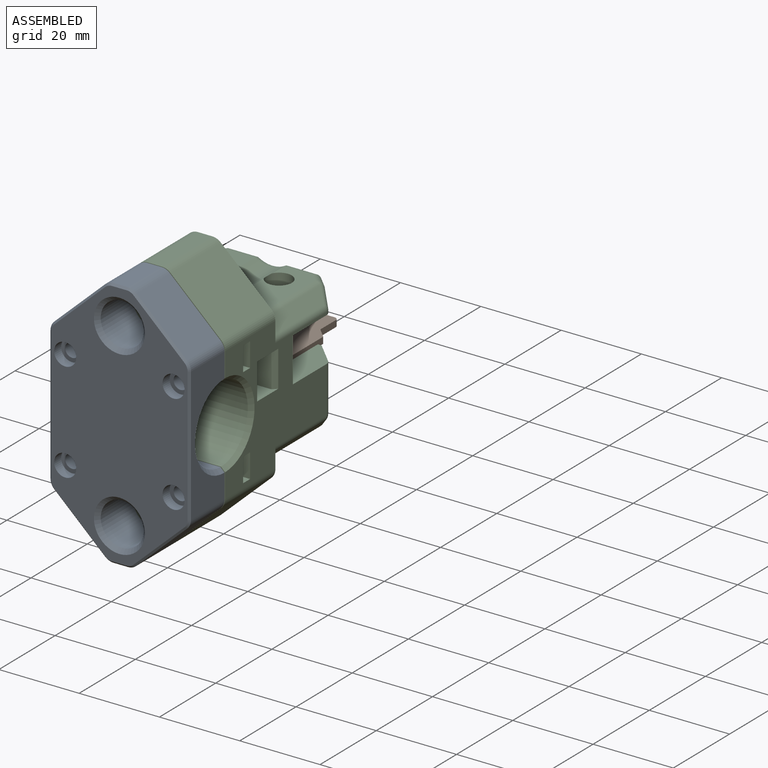
[diagram: assembled view]
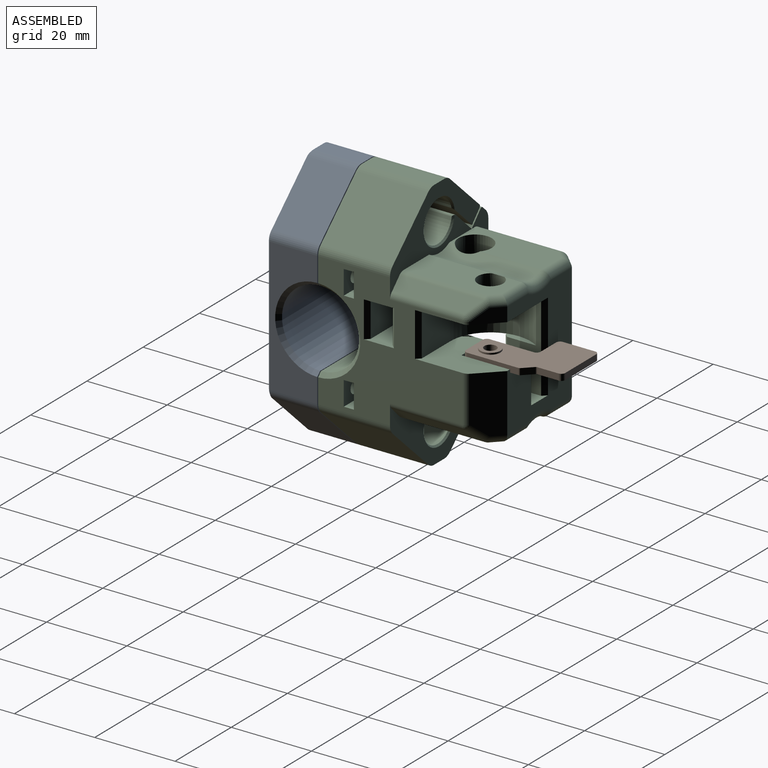
[diagram: assembled view, second angle]
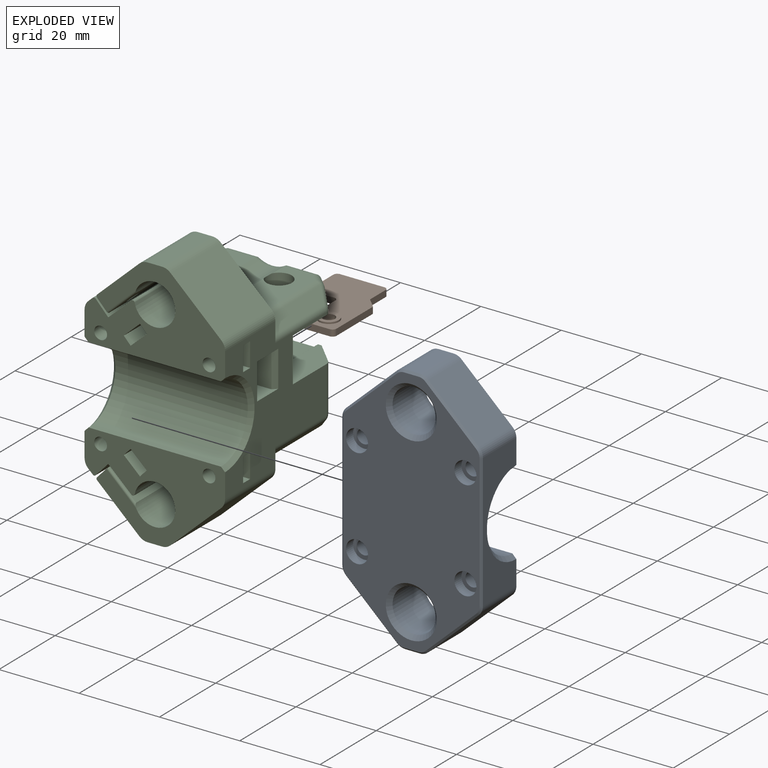
[diagram: exploded view]
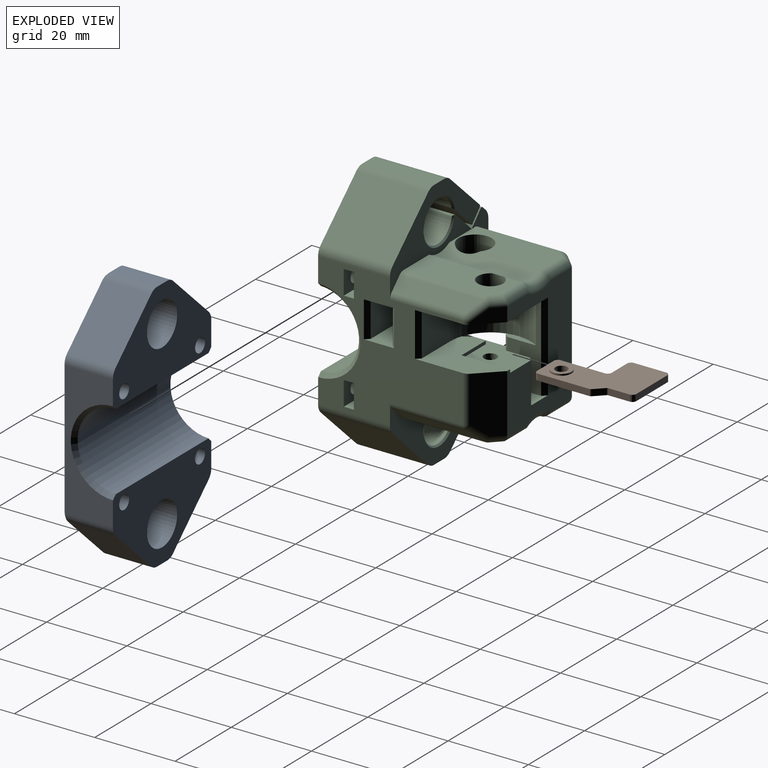
[diagram: exploded view, second angle]
ASSEMBLY  parts=3 mates=2
PART A: 54 faces, bbox 35x12.4x63 mm
  f0: plane 62x34mm, normal (0,1,0), area 1383.2mm2, adj f8,f13,f24,f28,f34,f35,f38,f39
  f1: plane 33.39x11.9mm, normal (-1,0,0), area 222.9mm2, adj f5,f17,f22,f32,f37,f50
  f2: plane 12.68x11.9mm, normal (-0.68,0,0.73), area 206.2mm2, adj f5,f17,f18,f46
  f3: cylinder r=5.35mm len=11.4mm, axis (0,1,0), area 383.2mm2, adj f5,f35
  f4: plane 11.9x3.64mm, normal (0,0,1), area 43.3mm2, adj f5,f16,f18,f42
  f5: plane 35x21.9mm, normal (0,-1,0), area 459.8mm2, adj f1,f2,f3,f4,f6,f7,f10,f11
  f6: cylinder r=9.6mm len=33mm, axis (-1,0,0), area 988.7mm2, adj f5,f22,f36,f37
  f7: cylinder r=1.75mm len=9.9mm, axis (0,1,0), area 108.9mm2, adj f5,f9
  f8: cylinder r=2.75mm len=5.5mm, axis (0,1,0), area 43.2mm2, adj f0,f9
  f9: plane 5.5x5.5mm, normal (0,1,0), area 14.1mm2, adj f7,f8
  f10: plane 33.39x11.9mm, normal (1,0,0), area 222.9mm2, adj f5,f15,f22,f30,f36,f41
  f11: plane 12.68x11.9mm, normal (0.68,0,0.73), area 206.2mm2, adj f5,f15,f16,f38
  f12: cylinder r=1.75mm len=9.9mm, axis (0,1,0), area 108.9mm2, adj f5,f14
  f13: cylinder r=2.75mm len=5.5mm, axis (0,1,0), area 43.2mm2, adj f0,f14
  f14: plane 5.5x5.5mm, normal (0,1,0), area 14.1mm2, adj f12,f13
  f15: cylinder r=3mm len=11.9mm, axis (0,1,0), area 29.3mm2, adj f5,f10,f11,f39
  f16: cylinder r=3mm len=11.9mm, axis (0,1,0), area 26.8mm2, adj f4,f5,f11,f40
  f17: cylinder r=3mm len=11.9mm, axis (0,1,0), area 29.3mm2, adj f1,f2,f5,f48
  f18: cylinder r=3mm len=11.9mm, axis (0,1,0), area 26.8mm2, adj f2,f4,f5,f44
  f19: plane 12.68x11.9mm, normal (-0.68,0,-0.73), area 206.2mm2, adj f22,f32,f33,f53
  f20: cylinder r=5.35mm len=11.4mm, axis (0,1,0), area 383.2mm2, adj f22,f34
  f21: plane 11.9x3.64mm, normal (0,0,-1), area 43.3mm2, adj f22,f31,f33,f49
  f22: plane 35x21.9mm, normal (0,-1,0), area 459.8mm2, adj f1,f6,f10,f19,f20,f21,f23,f26
  f23: cylinder r=1.75mm len=9.9mm, axis (0,1,0), area 108.9mm2, adj f22,f25
  f24: cylinder r=2.75mm len=5.5mm, axis (0,1,0), area 43.2mm2, adj f0,f25
  f25: plane 5.5x5.5mm, normal (0,1,0), area 14.1mm2, adj f23,f24
  f26: plane 12.68x11.9mm, normal (0.68,0,-0.73), area 206.2mm2, adj f22,f30,f31,f45
  f27: cylinder r=1.75mm len=9.9mm, axis (0,1,0), area 108.9mm2, adj f22,f29
  f28: cylinder r=2.75mm len=5.5mm, axis (0,1,0), area 43.2mm2, adj f0,f29
  f29: plane 5.5x5.5mm, normal (0,1,0), area 14.1mm2, adj f27,f28
  f30: cylinder r=3mm len=11.9mm, axis (0,1,0), area 29.3mm2, adj f10,f22,f26,f43
  f31: cylinder r=3mm len=11.9mm, axis (0,1,0), area 26.8mm2, adj f21,f22,f26,f47
  f32: cylinder r=3mm len=11.9mm, axis (0,1,0), area 29.3mm2, adj f1,f19,f22,f52
  f33: cylinder r=3mm len=11.9mm, axis (0,1,0), area 26.8mm2, adj f19,f21,f22,f51
  f34: cone r=5.35mm half-angle=45deg, axis (0,1,0), area 52mm2, adj f0,f20
  f35: cone r=6.35mm half-angle=45deg, axis (0,1,0), area 52mm2, adj f0,f3
  f36: cone r=10.6mm half-angle=45deg, axis (1,0,0), area 44.6mm2, adj f5,f6,f10,f22
  f37: cone r=9.6mm half-angle=45deg, axis (-1,0,0), area 44.6mm2, adj f1,f5,f6,f22
  f38: plane 13.02x12.17mm, normal (0.48,0.71,0.52), area 12.3mm2, adj f0,f11,f39,f40
  f39: cone r=2.5mm half-angle=45deg, axis (0,-1,0), area 1.6mm2, adj f0,f15,f38,f41
  f40: cone r=2.5mm half-angle=45deg, axis (0,-1,0), area 1.5mm2, adj f0,f16,f38,f42
  f41: plane 33.39x0.5mm, normal (0.71,0.71,0), area 23.6mm2, adj f0,f10,f39,f43
  f42: plane 3.64x0.5mm, normal (0,0.71,0.71), area 2.6mm2, adj f0,f4,f40,f44
  f43: cone r=3mm half-angle=45deg, axis (0,-1,0), area 1.6mm2, adj f0,f30,f41,f45
  f44: cone r=2.5mm half-angle=45deg, axis (0,-1,0), area 1.5mm2, adj f0,f18,f42,f46
  f45: plane 13.02x12.17mm, normal (0.48,0.71,-0.52), area 12.3mm2, adj f0,f26,f43,f47
  f46: plane 13.02x12.17mm, normal (-0.48,0.71,0.52), area 12.3mm2, adj f0,f2,f44,f48
  f47: cone r=3mm half-angle=45deg, axis (0,-1,0), area 1.5mm2, adj f0,f31,f45,f49
  f48: cone r=2.5mm half-angle=45deg, axis (0,-1,0), area 1.6mm2, adj f0,f17,f46,f50
  f49: plane 3.64x0.5mm, normal (0,0.71,-0.71), area 2.6mm2, adj f0,f21,f47,f51
  f50: plane 33.39x0.5mm, normal (-0.71,0.71,0), area 23.6mm2, adj f0,f1,f48,f52
  f51: cone r=3mm half-angle=45deg, axis (0,-1,0), area 1.5mm2, adj f0,f33,f49,f53
  f52: cone r=3mm half-angle=45deg, axis (0,-1,0), area 1.6mm2, adj f0,f32,f50,f53
  f53: plane 13.02x12.17mm, normal (-0.48,0.71,-0.52), area 12.3mm2, adj f0,f19,f51,f52
PART B: 21 faces, bbox 23x15.5x2 mm
  f0: plane 11x1.6mm, normal (0,1,0), area 17.6mm2, adj f1,f6,f11,f19
  f1: plane 23x15.5mm, normal (0,0,1), area 219.1mm2, adj f0,f2,f5,f6,f7,f8,f9,f10
  f2: plane 6x1.6mm, normal (-1,0,0), area 9.6mm2, adj f1,f6,f8,f11
  f3: cylinder r=1.5mm len=3mm, axis (0,0,-1), area 18.8mm2, adj f4,f11
  f4: plane 5x5mm, normal (0,0,1), area 12.6mm2, adj f3,f5
  f5: cylinder r=2.5mm len=5mm, axis (0,0,-1), area 6.3mm2, adj f1,f4
  f6: cylinder r=1mm len=1.6mm, axis (0,0,-1), area 2.5mm2, adj f0,f1,f2,f11
  f7: plane 12.79x1.6mm, normal (0,-1,0), area 20.5mm2, adj f1,f8,f11,f13
  f8: cylinder r=1mm len=1.6mm, axis (0,0,-1), area 2.5mm2, adj f1,f2,f7,f11
  f9: cylinder r=1mm len=1.6mm, axis (0,0,-1), area 2.5mm2, adj f1,f10,f11,f14
  f10: plane 11x1.6mm, normal (1,0,0), area 17.6mm2, adj f1,f9,f11,f18
  f11: plane 23x15.5mm, normal (0,0,-1), area 231.7mm2, adj f0,f2,f3,f6,f7,f8,f9,f10
  f12: plane 2.21x2.21mm, normal (0.71,-0.71,0), area 5mm2, adj f1,f11,f13,f15
  f13: cylinder r=0.5mm len=1.6mm, axis (0,0,-1), area 0.6mm2, adj f1,f7,f11,f12
  f14: plane 5.29x1.6mm, normal (0,-1,0), area 8.5mm2, adj f1,f9,f11,f15
  f15: cylinder r=0.5mm len=1.6mm, axis (0,0,1), area 0.6mm2, adj f1,f11,f12,f14
  f16: plane 8x1.6mm, normal (0,1,0), area 12.8mm2, adj f1,f11,f18,f20
  f17: plane 5.5x1.6mm, normal (-1,0,0), area 8.8mm2, adj f1,f11,f19,f20
  f18: cylinder r=1mm len=1.6mm, axis (0,0,1), area 2.5mm2, adj f1,f10,f11,f16
  f19: cylinder r=1mm len=1.6mm, axis (0,0,1), area 2.5mm2, adj f0,f1,f11,f17
  f20: cylinder r=1mm len=1.6mm, axis (0,0,-1), area 2.5mm2, adj f1,f11,f16,f17
PART C: 217 faces, bbox 35.1x43x63.1 mm
  f0: plane 29x23mm, normal (0,1,0), area 424.4mm2, adj f3,f17,f129,f157,f159,f163,f164,f165
  f1: plane 14.02x11mm, normal (-1,0,0), area 143.2mm2, adj f17,f129,f131,f158,f205,f216
  f2: cylinder r=1.6mm len=3.2mm, axis (0,0,-1), area 12.1mm2, adj f151,f157
  f3: plane 21.14x18.77mm, normal (0,0,-1), area 310.8mm2, adj f0,f37,f125,f126,f127,f162,f165,f179
  f4: plane 22x21.14mm, normal (0,0,-1), area 350mm2, adj f14,f126,f128,f130,f131,f161,f204,f208
  f5: plane 23x9.07mm, normal (0,0,-1), area 158.4mm2, adj f73,f111,f152,f173,f176,f177
  f6: plane 23x9.07mm, normal (0,0,-1), area 176.1mm2, adj f73,f74,f111,f144,f181,f183,f184
  f7: cylinder r=1.6mm len=3.2mm, axis (0,0,-1), area 25.1mm2, adj f143,f155
  f8: plane 23x9.07mm, normal (0,0,1), area 158.4mm2, adj f11,f20,f21,f141,f198,f200,f202
  f9: plane 23x9.07mm, normal (0,0,1), area 176.1mm2, adj f11,f20,f139,f186,f191,f193
  f10: cylinder r=1.6mm len=3.2mm, axis (0,0,-1), area 25.1mm2, adj f140,f156
  f11: cylinder r=7mm len=23mm, axis (0,-1,0), area 166.7mm2, adj f8,f9,f20,f139,f141,f196
  f12: cylinder r=1.6mm len=3.2mm, axis (0,0,-1), area 25.1mm2, adj f132,f154
  f13: plane 8.21x1.64mm, normal (0,0,1), area 9.7mm2, adj f125,f126,f130,f203
  f14: plane 36.07x33.39mm, normal (-1,0,0), area 508mm2, adj f4,f19,f21,f28,f29,f30,f31,f65
  f15: plane 3.2x3.1mm, normal (0,-1,0), area 8mm2, adj f16,f129
  f16: cylinder r=1.6mm len=9mm, axis (0,-1,0), area 84.2mm2, adj f15,f82,f128,f129
  f17: plane 18.77x15.5mm, normal (0,0,1), area 151.5mm2, adj f0,f1,f37,f126,f127,f131,f158,f164
  f18: cylinder r=1.65mm len=3.45mm, axis (-0.68,0,0.73), area 15.7mm2, adj f50,f61
  f19: plane 35x21.9mm, normal (0,-1,0), area 443.6mm2, adj f14,f22,f23,f24,f25,f26,f27,f36
  f20: plane 32.02x19.83mm, normal (0,1,0), area 225.5mm2, adj f8,f9,f11,f22,f26,f37,f38,f48
  f21: plane 8.37x5.9mm, normal (0,1,0), area 20.7mm2, adj f8,f14,f24,f47,f65,f69,f169,f194
  f22: plane 17.9x10.49mm, normal (-0.68,0,0.73), area 233.3mm2, adj f19,f20,f60,f66,f68
  f23: cylinder r=1.6mm len=6.4mm, axis (0,-1,0), area 64.3mm2, adj f19,f31
  f24: plane 17.9x1.09mm, normal (-0.68,0,0.73), area 26.6mm2, adj f19,f21,f65,f69
  f25: cylinder r=5.1mm len=17.5mm, axis (0,1,0), area 524.6mm2, adj f19,f50,f62,f67,f70
  f26: plane 17.9x3.64mm, normal (0,0,1), area 65.1mm2, adj f19,f20,f64,f66
  f27: cylinder r=9.6mm len=33mm, axis (-1,0,0), area 988.7mm2, adj f19,f72,f213,f214
  f28: plane 5.73x2.5mm, normal (0,0,1), area 14.3mm2, adj f14,f30,f31,f32
  f29: plane 5.73x2.5mm, normal (0,0,-1), area 14.3mm2, adj f14,f30,f31,f33
  f30: plane 7.46x6mm, normal (0,-1,0), area 31.5mm2, adj f14,f28,f29,f32,f33,f35
  f31: plane 7.46x6mm, normal (0,1,0), area 31.5mm2, adj f14,f23,f28,f29,f32,f33
  f32: plane 3x2.5mm, normal (-0.87,0,0.5), area 8.7mm2, adj f28,f30,f31,f33
  f33: plane 3x2.5mm, normal (-0.87,0,-0.5), area 8.7mm2, adj f29,f30,f31,f32
  f34: plane 3.2x3.2mm, normal (0,-1,0), area 8mm2, adj f35
  f35: cylinder r=1.6mm len=9mm, axis (0,-1,0), area 90.5mm2, adj f30,f34
  f36: cylinder r=1.6mm len=6.4mm, axis (0,-1,0), area 64.3mm2, adj f19,f42
  f37: plane 36.07x33.39mm, normal (1,0,0), area 618.6mm2, adj f3,f17,f19,f20,f39,f40,f41,f42
  f38: plane 17.9x12.68mm, normal (0.68,0,0.73), area 310.1mm2, adj f19,f20,f63,f64
  f39: plane 5.73x2.5mm, normal (0,0,1), area 14.3mm2, adj f37,f41,f42,f43
  f40: plane 5.73x2.5mm, normal (0,0,-1), area 14.3mm2, adj f37,f41,f42,f44
  f41: plane 7.46x6mm, normal (0,-1,0), area 31.5mm2, adj f37,f39,f40,f43,f44,f46
  f42: plane 7.46x6mm, normal (0,1,0), area 31.5mm2, adj f36,f37,f39,f40,f43,f44
  f43: plane 3x2.5mm, normal (0.87,0,0.5), area 8.7mm2, adj f39,f41,f42,f44
  f44: plane 3x2.5mm, normal (0.87,0,-0.5), area 8.7mm2, adj f40,f41,f42,f43
  f45: plane 3.2x3.2mm, normal (0,-1,0), area 8mm2, adj f46
  f46: cylinder r=1.6mm len=9mm, axis (0,-1,0), area 90.5mm2, adj f41,f45
  f47: plane 17.9x3.38mm, normal (0.73,0,0.68), area 82.6mm2, adj f19,f21,f48,f69
  f48: plane 17.9x5.75mm, normal (-0.68,0,0.73), area 132.2mm2, adj f19,f20,f47,f51,f67
  f49: plane 17.9x2.87mm, normal (-0.73,0,-0.68), area 70mm2, adj f19,f20,f50,f68,f70
  f50: plane 17.43x6.77mm, normal (0.68,0,-0.73), area 151.6mm2, adj f18,f20,f25,f49,f62,f70
  f51: cylinder r=1.65mm len=5.82mm, axis (-0.68,0,0.73), area 50.6mm2, adj f48,f53
  f52: plane 9.08x4.03mm, normal (-0.68,0,0.73), area 37mm2, adj f19,f54,f55,f56,f57,f59
  f53: plane 9.08x4.03mm, normal (0.68,0,-0.73), area 37mm2, adj f19,f51,f54,f55,f56,f57
  f54: plane 7.49x1.83mm, normal (-0.73,0,-0.68), area 18.7mm2, adj f19,f52,f53,f55
  f55: plane 3.72x3.7mm, normal (-0.37,-0.87,-0.34), area 7.9mm2, adj f52,f53,f54,f56
  f56: plane 3.72x3.7mm, normal (0.37,-0.87,0.34), area 7.9mm2, adj f52,f53,f55,f57
  f57: plane 7.49x1.83mm, normal (0.73,0,0.68), area 18.7mm2, adj f19,f52,f53,f56
  f58: plane 3.3x2.42mm, normal (-0.68,0,0.73), area 8.6mm2, adj f59
  f59: cylinder r=1.65mm len=4.12mm, axis (-0.68,0,0.73), area 25.9mm2, adj f52,f58
  f60: cylinder r=2.75mm len=6mm, axis (-0.68,0,0.73), area 50.1mm2, adj f22,f61,f68
  f61: plane 5.5x4.03mm, normal (-0.68,0,0.73), area 15.2mm2, adj f18,f60
  f62: cone r=5.5mm half-angle=45deg, axis (0,1,0), area 18mm2, adj f20,f25,f50,f67
  f63: cylinder r=3mm len=17.9mm, axis (0,1,0), area 44.1mm2, adj f19,f20,f37,f38
  f64: cylinder r=3mm len=17.9mm, axis (0,1,0), area 40.3mm2, adj f19,f20,f26,f38
  f65: cylinder r=3mm len=17.9mm, axis (0,1,0), area 44.1mm2, adj f14,f19,f21,f24
  f66: cylinder r=3mm len=17.9mm, axis (0,1,0), area 40.3mm2, adj f19,f20,f22,f26
  f67: cylinder r=0.5mm len=17.9mm, axis (0,1,0), area 19mm2, adj f19,f20,f25,f48,f62
  f68: cylinder r=0.5mm len=17.9mm, axis (0,-1,0), area 13.7mm2, adj f19,f20,f22,f49,f60
  f69: cylinder r=0.5mm len=17.9mm, axis (0,1,0), area 14.1mm2, adj f19,f21,f24,f47
  f70: cylinder r=0.5mm len=7.76mm, axis (0.73,0,0.68), area 7.5mm2, adj f19,f25,f49,f50
  f71: cylinder r=1.65mm len=3.45mm, axis (-0.68,0,-0.73), area 15.7mm2, adj f99,f110
  f72: plane 35x21.9mm, normal (0,-1,0), area 443.6mm2, adj f14,f27,f37,f75,f76,f77,f78,f79
  f73: plane 32.02x19.83mm, normal (0,1,0), area 225.5mm2, adj f5,f6,f37,f75,f79,f87,f97,f98
  f74: plane 8.37x5.9mm, normal (0,1,0), area 20.7mm2, adj f6,f14,f77,f96,f115,f119,f166,f183
  f75: plane 17.9x10.49mm, normal (-0.68,0,-0.73), area 233.3mm2, adj f72,f73,f109,f116,f118
  f76: cylinder r=1.6mm len=6.4mm, axis (0,-1,0), area 64.3mm2, adj f72,f83
  f77: plane 17.9x1.09mm, normal (-0.68,0,-0.73), area 26.6mm2, adj f72,f74,f115,f119
  f78: cylinder r=5.1mm len=17.5mm, axis (0,1,0), area 524.6mm2, adj f72,f99,f112,f117,f120
  f79: plane 17.9x3.64mm, normal (0,0,-1), area 65.1mm2, adj f72,f73,f114,f116
  f80: plane 5.73x2.5mm, normal (0,0,-1), area 14.3mm2, adj f14,f82,f83,f84
  f81: plane 5.73x2.5mm, normal (0,0,1), area 14.3mm2, adj f14,f82,f83,f85
  f82: plane 7.46x6mm, normal (0,-1,0), area 31.5mm2, adj f14,f16,f80,f81,f84,f85
  f83: plane 7.46x6mm, normal (0,1,0), area 31.5mm2, adj f14,f76,f80,f81,f84,f85
  f84: plane 3x2.5mm, normal (-0.87,0,-0.5), area 8.7mm2, adj f80,f82,f83,f85
  f85: plane 3x2.5mm, normal (-0.87,0,0.5), area 8.7mm2, adj f81,f82,f83,f84
  f86: cylinder r=1.6mm len=6.4mm, axis (0,-1,0), area 64.3mm2, adj f72,f91
  f87: plane 17.9x12.68mm, normal (0.68,0,-0.73), area 310.1mm2, adj f72,f73,f113,f114
  f88: plane 5.73x2.5mm, normal (0,0,-1), area 14.3mm2, adj f37,f90,f91,f92
  f89: plane 5.73x2.5mm, normal (0,0,1), area 14.3mm2, adj f37,f90,f91,f93
  f90: plane 7.46x6mm, normal (0,-1,0), area 31.5mm2, adj f37,f88,f89,f92,f93,f95
  f91: plane 7.46x6mm, normal (0,1,0), area 31.5mm2, adj f37,f86,f88,f89,f92,f93
  f92: plane 3x2.5mm, normal (0.87,0,-0.5), area 8.7mm2, adj f88,f90,f91,f93
  f93: plane 3x2.5mm, normal (0.87,0,0.5), area 8.7mm2, adj f89,f90,f91,f92
  f94: plane 3.2x3.2mm, normal (0,-1,0), area 8mm2, adj f95
  f95: cylinder r=1.6mm len=9mm, axis (0,-1,0), area 90.5mm2, adj f90,f94
  f96: plane 17.9x3.38mm, normal (0.73,0,-0.68), area 82.6mm2, adj f72,f74,f97,f119
  f97: plane 17.9x5.75mm, normal (-0.68,0,-0.73), area 132.2mm2, adj f72,f73,f96,f100,f117
  f98: plane 17.9x2.87mm, normal (-0.73,0,0.68), area 70mm2, adj f72,f73,f99,f118,f120
  f99: plane 17.43x6.77mm, normal (0.68,0,0.73), area 151.6mm2, adj f71,f73,f78,f98,f112,f120
  f100: cylinder r=1.65mm len=5.82mm, axis (-0.68,0,-0.73), area 50.6mm2, adj f97,f102
  f101: plane 9.08x4.03mm, normal (-0.68,0,-0.73), area 37mm2, adj f72,f103,f104,f105,f106,f108
  f102: plane 9.08x4.03mm, normal (0.68,0,0.73), area 37mm2, adj f72,f100,f103,f104,f105,f106
  f103: plane 7.49x1.83mm, normal (-0.73,0,0.68), area 18.7mm2, adj f72,f101,f102,f104
  f104: plane 3.72x3.7mm, normal (-0.37,-0.87,0.34), area 7.9mm2, adj f101,f102,f103,f105
  f105: plane 3.72x3.7mm, normal (0.37,-0.87,-0.34), area 7.9mm2, adj f101,f102,f104,f106
  f106: plane 7.49x1.83mm, normal (0.73,0,-0.68), area 18.7mm2, adj f72,f101,f102,f105
  f107: plane 3.3x2.42mm, normal (-0.68,0,-0.73), area 8.6mm2, adj f108
  f108: cylinder r=1.65mm len=4.12mm, axis (-0.68,0,-0.73), area 25.9mm2, adj f101,f107
  f109: cylinder r=2.75mm len=6mm, axis (-0.68,0,-0.73), area 50.1mm2, adj f75,f110,f118
  f110: plane 5.5x4.03mm, normal (-0.68,0,-0.73), area 15.2mm2, adj f71,f109
  f111: cylinder r=7mm len=23mm, axis (0,-1,0), area 166.7mm2, adj f5,f6,f73,f144,f152,f178
  f112: cone r=5.5mm half-angle=45deg, axis (0,1,0), area 18mm2, adj f73,f78,f99,f117
  f113: cylinder r=3mm len=17.9mm, axis (0,1,0), area 44.1mm2, adj f37,f72,f73,f87
  f114: cylinder r=3mm len=17.9mm, axis (0,1,0), area 40.3mm2, adj f72,f73,f79,f87
  f115: cylinder r=3mm len=17.9mm, axis (0,1,0), area 44.1mm2, adj f14,f72,f74,f77
  f116: cylinder r=3mm len=17.9mm, axis (0,1,0), area 40.3mm2, adj f72,f73,f75,f79
  f117: cylinder r=0.5mm len=17.9mm, axis (0,1,0), area 19mm2, adj f72,f73,f78,f97,f112
  f118: cylinder r=0.5mm len=17.9mm, axis (0,-1,0), area 13.7mm2, adj f72,f73,f75,f98,f109
  f119: cylinder r=0.5mm len=17.9mm, axis (0,1,0), area 14.1mm2, adj f72,f74,f77,f96
  f120: cylinder r=0.5mm len=7.76mm, axis (0.73,0,-0.68), area 7.5mm2, adj f72,f78,f98,f99
  f121: plane 33x9mm, normal (0,1,0), area 297mm2, adj f122,f124,f209,f212
  f122: plane 35x7.5mm, normal (0,0,1), area 194.5mm2, adj f14,f37,f121,f123,f209,f210,f211,f212
  f123: plane 33x9mm, normal (0,-1,0), area 297mm2, adj f122,f124,f210,f211
  f124: plane 35x7.5mm, normal (0,0,-1), area 194.5mm2, adj f14,f37,f121,f123,f209,f210,f211,f212
  f125: plane 22x8.5mm, normal (1,0,0), area 107.7mm2, adj f3,f13,f126,f129,f203,f206
  f126: cylinder r=10mm len=15.48mm, axis (0,0,-1), area 236.6mm2, adj f3,f4,f13,f17,f125,f127
  f127: plane 11x10.14mm, normal (0,1,0), area 111.5mm2, adj f3,f17,f126,f207
  f128: plane 11x10.14mm, normal (0,1,0), area 111.4mm2, adj f4,f16,f129,f131,f208
  f129: plane 31.5x21.14mm, normal (0,0,1), area 409.7mm2, adj f0,f1,f14,f15,f16,f125,f128,f130
  f130: plane 13.5x11mm, normal (0,-1,0), area 148.5mm2, adj f4,f13,f129,f203,f204
  f131: cylinder r=10mm len=15.48mm, axis (0,0,1), area 236.6mm2, adj f1,f4,f17,f128,f129
  f132: plane 6.7x5.8mm, normal (0,0,1), area 21.1mm2, adj f12,f133,f134,f135,f136,f137,f138
  f133: plane 4.5x2.9mm, normal (0.5,0.87,0), area 15.1mm2, adj f132,f134,f138,f142
  f134: plane 4.5x2.9mm, normal (-0.5,0.87,0), area 15.1mm2, adj f132,f133,f135,f142
  f135: plane 4.5x3.35mm, normal (-1,0,0), area 15.1mm2, adj f132,f134,f136,f142
  f136: plane 4.5x2.9mm, normal (-0.5,-0.87,0), area 15.1mm2, adj f132,f135,f137,f142
  f137: plane 4.5x2.9mm, normal (0.5,-0.87,0), area 15.1mm2, adj f132,f136,f138,f142
  f138: plane 4.5x3.35mm, normal (1,0,0), area 15.1mm2, adj f132,f133,f137,f142
  f139: cylinder r=3.15mm len=6.3mm, axis (0,0,1), area 68.8mm2, adj f9,f11,f140
  f140: plane 6.3x6.3mm, normal (0,0,1), area 23.1mm2, adj f10,f139
  f141: cylinder r=4.15mm len=10mm, axis (0,0,1), area 257.6mm2, adj f8,f11,f142
  f142: plane 8.3x8.3mm, normal (0,0,1), area 25mm2, adj f133,f134,f135,f136,f137,f138,f141
  f143: plane 6.3x6.3mm, normal (0,0,-1), area 23.1mm2, adj f7,f144
  f144: cylinder r=3.15mm len=6.3mm, axis (0,0,-1), area 68.8mm2, adj f6,f111,f143
  f145: plane 4.5x3.18mm, normal (1,0,0), area 14.3mm2, adj f146,f150,f151,f153
  f146: plane 4.5x2.75mm, normal (0.5,-0.87,0), area 14.3mm2, adj f145,f147,f151,f153
  f147: plane 4.5x2.75mm, normal (-0.5,-0.87,0), area 14.3mm2, adj f146,f148,f151,f153
  f148: plane 4.5x3.18mm, normal (-1,0,0), area 14.3mm2, adj f147,f149,f151,f153
  f149: plane 4.5x2.75mm, normal (-0.5,0.87,0), area 14.3mm2, adj f148,f150,f151,f153
  f150: plane 4.5x2.75mm, normal (0.5,0.87,0), area 14.3mm2, adj f145,f149,f151,f153
  f151: plane 6.35x5.5mm, normal (0,0,-1), area 18.2mm2, adj f2,f145,f146,f147,f148,f149,f150
  f152: cylinder r=4.15mm len=10mm, axis (0,0,-1), area 257.6mm2, adj f5,f111,f153
  f153: plane 8.3x8.3mm, normal (0,0,-1), area 27.9mm2, adj f145,f146,f147,f148,f149,f150,f152
  f154: plane 4x4mm, normal (0,0,-1), area 4.5mm2, adj f12,f161
  f155: plane 4x4mm, normal (0,0,1), area 4.5mm2, adj f7,f160
  f156: plane 4x4mm, normal (0,0,-1), area 4.5mm2, adj f10,f162
  f157: plane 12x8.25mm, normal (0,0,1), area 90.6mm2, adj f0,f2,f158,f159,f205,f216
  f158: plane 8.65x1mm, normal (0,1,0), area 6.8mm2, adj f1,f17,f157,f159,f215,f216
  f159: plane 12x0.6mm, normal (-1,0,0), area 7.2mm2, adj f0,f157,f158,f215
  f160: cone r=2mm half-angle=45deg, axis (0,0,-1), area 10mm2, adj f129,f155
  f161: cone r=2mm half-angle=45deg, axis (0,0,1), area 10mm2, adj f4,f154
  f162: cone r=2mm half-angle=45deg, axis (0,0,1), area 10mm2, adj f3,f156
  f163: plane 29x5.41mm, normal (-0.71,0.71,0), area 210.7mm2, adj f0,f184,f190,f195,f199,f200
  f164: plane 14.5x5.41mm, normal (0.71,0.71,0), area 105.4mm2, adj f0,f17,f171,f174,f176
  f165: plane 5.41x5.41mm, normal (0.71,0.71,0), area 21.1mm2, adj f0,f3,f179,f185,f191
  f166: plane 21x2.83mm, normal (-0.71,0,-0.71), area 78.3mm2, adj f74,f183,f189,f190
  f167: plane 21x2.83mm, normal (0.71,0,-0.71), area 78.3mm2, adj f73,f170,f173,f174
  f168: plane 21x2.83mm, normal (0.71,0,0.71), area 78.3mm2, adj f20,f180,f185,f186
  f169: plane 21x2.83mm, normal (-0.71,0,0.71), area 78.3mm2, adj f21,f194,f199,f202
  f170: cylinder r=2mm len=18.17mm, axis (0,1,0), area 28.5mm2, adj f37,f73,f167,f172
  f171: cylinder r=2mm len=11.67mm, axis (0,0,-1), area 18.3mm2, adj f17,f37,f164,f172
  f172: sphere r=2mm, area 1.4mm2, adj f170,f171,f174
  f173: cylinder r=2mm len=21mm, axis (0,-1,0), area 33mm2, adj f5,f73,f167,f175
  f174: cylinder r=2mm len=4.24mm, axis (0.58,-0.58,0.58), area 10.3mm2, adj f164,f167,f172,f175
  f175: sphere r=2mm, area 1.8mm2, adj f173,f174,f176
  f176: cylinder r=2mm len=4mm, axis (-0.71,0.71,0), area 10.5mm2, adj f5,f164,f175,f177
  f177: cylinder r=2mm len=7.89mm, axis (-1,0,0), area 23mm2, adj f0,f5,f176,f178
  f178: torus R=9mm, axis (0,1,0), area 24.6mm2, adj f0,f111,f177,f181
  f179: cylinder r=2mm len=1.41mm, axis (0,0,-1), area 1.1mm2, adj f3,f37,f165,f182
  f180: cylinder r=2mm len=18.17mm, axis (0,-1,0), area 28.5mm2, adj f20,f37,f168,f182
  f181: cylinder r=2mm len=7.89mm, axis (-1,0,0), area 23mm2, adj f0,f6,f178,f184
  f182: sphere r=2mm, area 1.4mm2, adj f179,f180,f185
  f183: cylinder r=2mm len=21mm, axis (0,1,0), area 33mm2, adj f6,f74,f166,f187
  f184: cylinder r=2mm len=4mm, axis (-0.71,-0.71,0), area 10.5mm2, adj f6,f163,f181,f187
  f185: cylinder r=2mm len=4.24mm, axis (-0.58,0.58,0.58), area 10.3mm2, adj f165,f168,f182,f188
  f186: cylinder r=2mm len=21mm, axis (0,1,0), area 33mm2, adj f9,f20,f168,f188
  f187: sphere r=2mm, area 1.8mm2, adj f183,f184,f190
  f188: sphere r=2mm, area 1.8mm2, adj f185,f186,f191
  f189: cylinder r=2mm len=18.17mm, axis (0,-1,0), area 28.5mm2, adj f14,f74,f166,f192
  f190: cylinder r=2mm len=4.24mm, axis (0.58,0.58,-0.58), area 10.3mm2, adj f163,f166,f187,f192
  f191: cylinder r=2mm len=4mm, axis (0.71,-0.71,0), area 10.5mm2, adj f9,f165,f188,f193
  f192: sphere r=2mm, area 1.4mm2, adj f189,f190,f195
  f193: cylinder r=2mm len=7.89mm, axis (-1,0,0), area 23mm2, adj f0,f9,f191,f196
  f194: cylinder r=2mm len=18.17mm, axis (0,1,0), area 28.5mm2, adj f14,f21,f169,f197
  f195: cylinder r=2mm len=23.34mm, axis (0,0,1), area 36.7mm2, adj f14,f163,f192,f197
  f196: torus R=9mm, axis (0,1,0), area 24.6mm2, adj f0,f11,f193,f198
  f197: sphere r=2mm, area 1.4mm2, adj f194,f195,f199
  f198: cylinder r=2mm len=7.89mm, axis (-1,0,0), area 23mm2, adj f0,f8,f196,f200
  f199: cylinder r=2mm len=4.24mm, axis (-0.58,-0.58,-0.58), area 10.3mm2, adj f163,f169,f197,f201
  f200: cylinder r=2mm len=4mm, axis (0.71,0.71,0), area 10.5mm2, adj f8,f163,f198,f201
  f201: sphere r=2mm, area 1.8mm2, adj f199,f200,f202
  f202: cylinder r=2mm len=21mm, axis (0,-1,0), area 33mm2, adj f8,f21,f169,f201
  f203: plane 11x1mm, normal (0.71,-0.71,0), area 15.6mm2, adj f13,f125,f129,f130
  f204: plane 11x1mm, normal (-0.71,-0.71,0), area 15.6mm2, adj f4,f14,f129,f130
  f205: plane 10.28x1.08mm, normal (-0.71,0.71,0), area 14.4mm2, adj f0,f1,f129,f157,f216
  f206: plane 22x1mm, normal (0.71,0.71,0), area 31.1mm2, adj f0,f3,f125,f129
  f207: plane 11x1mm, normal (0.71,0.71,0), area 15.6mm2, adj f3,f17,f37,f127
  f208: plane 11x1mm, normal (-0.71,0.71,0), area 15.6mm2, adj f4,f14,f128,f129
  f209: plane 9x1mm, normal (-0.71,0.71,0), area 12.7mm2, adj f14,f121,f122,f124
  f210: plane 9x1mm, normal (-0.71,-0.71,0), area 12.7mm2, adj f14,f122,f123,f124
  f211: plane 9x1mm, normal (0.71,-0.71,0), area 12.7mm2, adj f37,f122,f123,f124
  f212: plane 9x1mm, normal (0.71,0.71,0), area 12.7mm2, adj f37,f121,f122,f124
  f213: cone r=9.6mm half-angle=45deg, axis (-1,0,0), area 44.6mm2, adj f14,f19,f27,f72
  f214: cone r=10.6mm half-angle=45deg, axis (1,0,0), area 44.6mm2, adj f19,f27,f37,f72
  f215: cylinder r=0.2mm len=12mm, axis (0,-1,0), area 3.8mm2, adj f0,f17,f158,f159
  f216: cylinder r=0.2mm len=11.2mm, axis (0,1,0), area 3.5mm2, adj f1,f157,f158,f205
PLACE A rot(axis=(1,0,0),180deg) t=(-6.76,-27.46,15.66)mm
PLACE B rot(axis=(0,0,1),90deg) t=(-0.39,20.27,14.86)mm
PLACE C t=(-6.76,3.04,15.66)mm fixed
MATE fastened A.f36 <-> C.f27  axis (-1,0,0) through (9.74,-14.96,15.66)mm
MATE fastened B.f3 <-> C.f126  axis (0,0,-1) through (-0.39,20.27,14.86)mm
